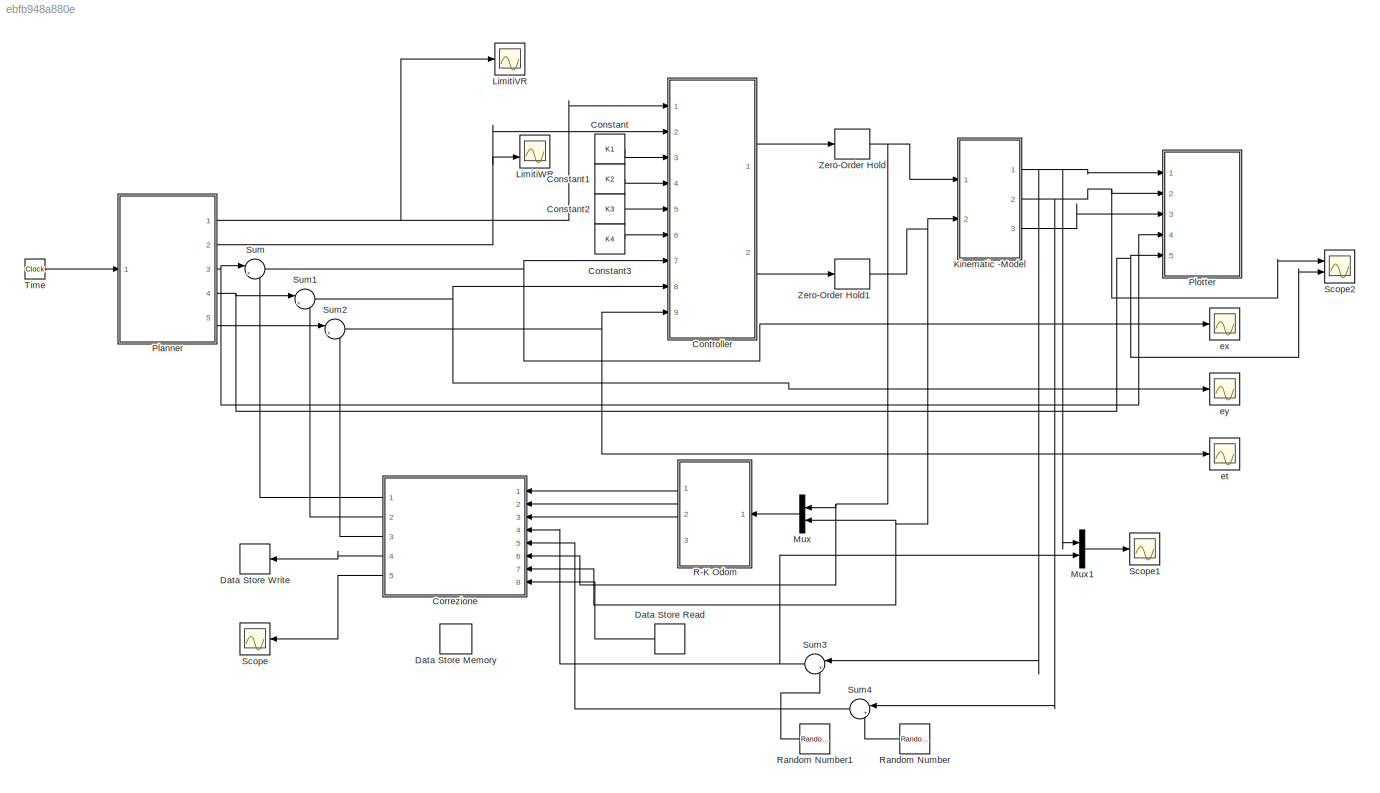
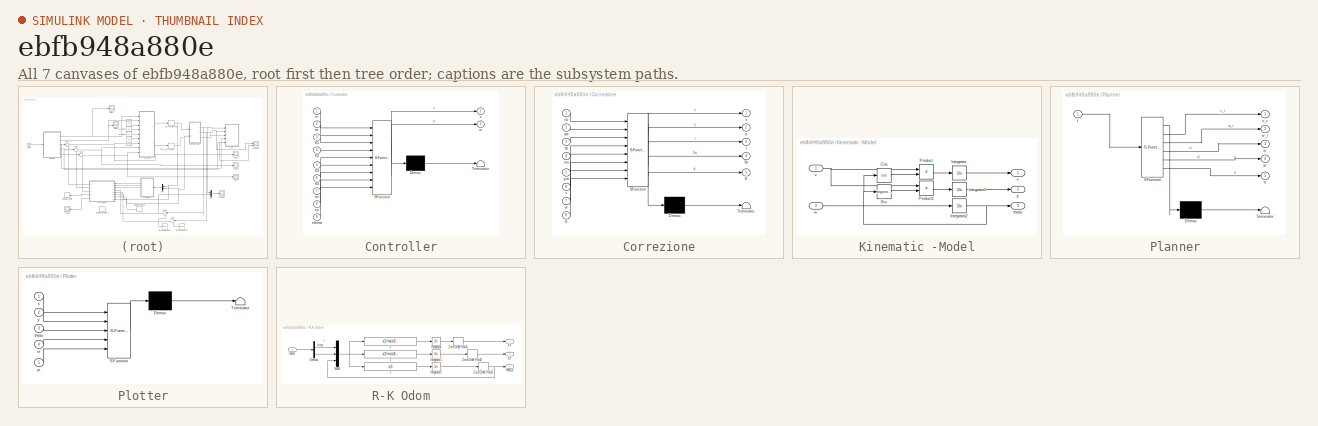
[diagram: thumbnail index - all 7 canvases of the model, root first then tree order]
MODEL slx_ebfb948a880e
KIND model
CONFIG AbsTol = auto
CONFIG EnableMultiTasking = off
CONFIG FixedStep = T_s
CONFIG MaxStep = auto
CONFIG MinStep = auto
CONFIG RelTol = 1e-3
CONFIG SampleTimeConstraint = Unconstrained
CONFIG SolverName = FixedStepAuto
CONFIG StartTime = 0.0
CONFIG StopTime = 250
BLOCK [Constant] Constant
  Value = K1
BLOCK [Constant] Constant1
  Value = K2
BLOCK [Constant] Constant2
  Value = K3
BLOCK [Constant] Constant3
  Value = K4
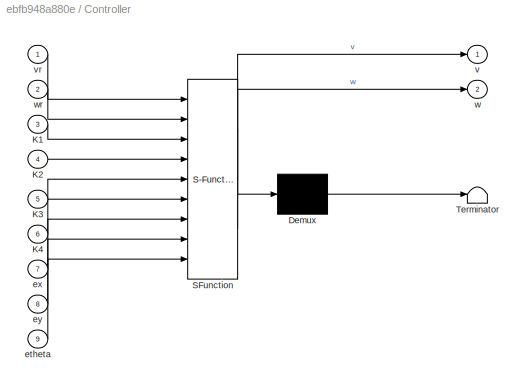
BLOCK [SubSystem] Controller
  ErrorFcn = Stateflow.Translate.translate
  PermitHierarchicalResolution = ExplicitOnly
  Ports = [9, 2]
  RequestExecContextInheritance = off
  SFBlockType = MATLAB Function
  TreatAsAtomicUnit = on
BLOCK [Demux] Controller/ Demux 
  Outputs = 1
  Ports = [1, 1]
BLOCK [S-Function] Controller/ SFunction 
  EnableBusSupport = on
  FunctionName = sf_sfun
  PortCounts = [9 3]
  Ports = [9, 3]
  SFcnIsStateOwnerBlock = off
  SFunctionDeploymentMode = off
  Tag = Stateflow S-Function 4
BLOCK [Terminator] Controller/ Terminator 
BLOCK [Inport] Controller/K1
  Port = 3
BLOCK [Inport] Controller/K2
  Port = 4
BLOCK [Inport] Controller/K3
  Port = 5
BLOCK [Inport] Controller/K4
  Port = 6
BLOCK [Inport] Controller/etheta
  Port = 9
BLOCK [Inport] Controller/ex
  Port = 7
BLOCK [Inport] Controller/ey
  Port = 8
BLOCK [Outport] Controller/v
BLOCK [Inport] Controller/vr
BLOCK [Outport] Controller/w
  Port = 2
BLOCK [Inport] Controller/wr
  Port = 2
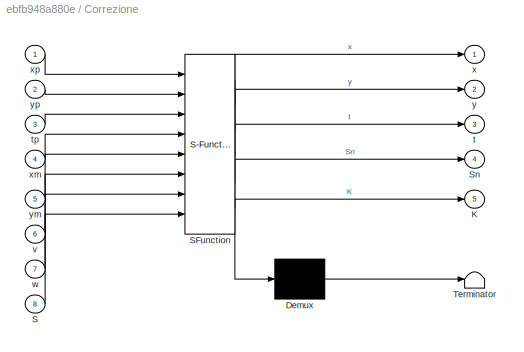
BLOCK [SubSystem] Correzione
  ErrorFcn = Stateflow.Translate.translate
  PermitHierarchicalResolution = ExplicitOnly
  Ports = [8, 5]
  RequestExecContextInheritance = off
  SFBlockType = MATLAB Function
  TreatAsAtomicUnit = on
BLOCK [Demux] Correzione/ Demux 
  Outputs = 1
  Ports = [1, 1]
BLOCK [S-Function] Correzione/ SFunction 
  EnableBusSupport = on
  FunctionName = sf_sfun
  PortCounts = [8 6]
  Ports = [8, 6]
  SFcnIsStateOwnerBlock = off
  SFunctionDeploymentMode = off
  Tag = Stateflow S-Function 3
BLOCK [Terminator] Correzione/ Terminator 
BLOCK [Outport] Correzione/K
  Port = 5
BLOCK [Inport] Correzione/S
  Port = 8
BLOCK [Outport] Correzione/Sn
  Port = 4
BLOCK [Outport] Correzione/t
  Port = 3
BLOCK [Inport] Correzione/tp
  Port = 3
BLOCK [Inport] Correzione/v
  Port = 6
BLOCK [Inport] Correzione/w
  Port = 7
BLOCK [Outport] Correzione/x
BLOCK [Inport] Correzione/xm
  Port = 4
BLOCK [Inport] Correzione/xp
BLOCK [Outport] Correzione/y
  Port = 2
BLOCK [Inport] Correzione/ym
  Port = 5
BLOCK [Inport] Correzione/yp
  Port = 2
BLOCK [DataStoreMemory] Data Store Memory
  DataStoreName = S
  InitialValue = eye(3)
  ReadBeforeWriteMsg = warning
  ShowAdditionalParam = off
  WriteAfterReadMsg = warning
  WriteAfterWriteMsg = warning
BLOCK [DataStoreRead] Data Store Read
  DataStoreName = S
  IndexOptions = Index vector (dialog)
  Indices = 1
  OutputSizes = 1
  Ports = [0, 1]
BLOCK [DataStoreWrite] Data Store Write
  DataStoreName = S
  IndexOptions = Index vector (dialog)
  Indices = 1
  OutputSizes = 1
  Ports = [1]
BLOCK [SubSystem] Kinematic -Model
  Ports = [2, 3]
  RequestExecContextInheritance = off
BLOCK [Trigonometry] Kinematic -Model/Cos
  Operator = cos
  Ports = [1, 1]
BLOCK [Integrator] Kinematic -Model/Integrator
  InitialCondition = x0(1)
  Ports = [1, 1]
BLOCK [Integrator] Kinematic -Model/Integrator1
  InitialCondition = x0(2)
  Ports = [1, 1]
BLOCK [Integrator] Kinematic -Model/Integrator2
  InitialCondition = x0(3)
  Ports = [1, 1]
BLOCK [Product] Kinematic -Model/Product
  Ports = [2, 1]
BLOCK [Product] Kinematic -Model/Product1
  Ports = [2, 1]
BLOCK [Trigonometry] Kinematic -Model/Sin
  Ports = [1, 1]
BLOCK [Outport] Kinematic -Model/theta
  Port = 3
BLOCK [Inport] Kinematic -Model/v
BLOCK [Inport] Kinematic -Model/w
  Port = 2
BLOCK [Outport] Kinematic -Model/x
BLOCK [Outport] Kinematic -Model/y
  Port = 2
BLOCK [Scope] LimitiVR
  Floating = off
  NumInputPorts = 1
  Ports = [1]
  ScopeSpecificationString = Simulink.scopes.TimeScopeBlockCfg('CurrentConfiguration', extmgr.ConfigurationSet(extmgr.Configuration('Core','General UI',true),extmgr.Configuration('Core','Source UI',true),extmgr.Configuration('Sources','WiredSimulink',true),extmgr.Configuration('Visuals','Time Domain',true,'SerializedDisplays',{struct('MinYLimReal','1.21079','MaxYLimReal','1.30944','YLabelReal','','MinYLimMag','1.21079','MaxYL...<+1401ch>
BLOCK [Scope] LimitiWR
  Floating = off
  NumInputPorts = 2
  Ports = [2]
  ScopeSpecificationString = Simulink.scopes.TimeScopeBlockCfg('CurrentConfiguration', extmgr.ConfigurationSet(extmgr.Configuration('Core','General UI',true),extmgr.Configuration('Core','Source UI',true),extmgr.Configuration('Sources','WiredSimulink',true,'DataLoggingVariableName','ScopeData1'),extmgr.Configuration('Visuals','Time Domain',true,'SerializedDisplays',{struct('MinYLimReal','-3.34792','MaxYLimReal','2.30369','YLab...<+1401ch>
BLOCK [Mux] Mux
  DisplayOption = bar
  Inputs = 2
  Ports = [2, 1]
BLOCK [Mux] Mux1
  DisplayOption = bar
  Inputs = 2
  Ports = [2, 1]
BLOCK [SubSystem] Planner
  ErrorFcn = Stateflow.Translate.translate
  PermitHierarchicalResolution = ExplicitOnly
  Ports = [1, 5]
  RequestExecContextInheritance = off
  SFBlockType = MATLAB Function
  TreatAsAtomicUnit = on
BLOCK [Demux] Planner/ Demux 
  Outputs = 1
  Ports = [1, 1]
BLOCK [S-Function] Planner/ SFunction 
  EnableBusSupport = on
  FunctionName = sf_sfun
  PortCounts = [1 6]
  Ports = [1, 6]
  SFcnIsStateOwnerBlock = off
  SFunctionDeploymentMode = off
  Tag = Stateflow S-Function 1
BLOCK [Terminator] Planner/ Terminator 
BLOCK [Inport] Planner/t
BLOCK [Outport] Planner/tr
  Port = 5
BLOCK [Outport] Planner/v_r
BLOCK [Outport] Planner/w_r
  Port = 2
BLOCK [Outport] Planner/xr
  Port = 3
BLOCK [Outport] Planner/yr
  Port = 4
BLOCK [SubSystem] Plotter
  ErrorFcn = Stateflow.Translate.translate
  PermitHierarchicalResolution = ExplicitOnly
  Ports = [5]
  RequestExecContextInheritance = off
  SFBlockType = MATLAB Function
  TreatAsAtomicUnit = on
BLOCK [Demux] Plotter/ Demux 
  Outputs = 1
  Ports = [1, 1]
BLOCK [S-Function] Plotter/ SFunction 
  EnableBusSupport = on
  FunctionName = sf_sfun
  PortCounts = [5 1]
  Ports = [5, 1]
  SFcnIsStateOwnerBlock = off
  SFunctionDeploymentMode = off
  Tag = Stateflow S-Function 2
BLOCK [Terminator] Plotter/ Terminator 
BLOCK [Inport] Plotter/theta
  Port = 3
BLOCK [Inport] Plotter/x
BLOCK [Inport] Plotter/xr
  Port = 4
BLOCK [Inport] Plotter/y
  Port = 2
BLOCK [Inport] Plotter/yr
  Port = 5
BLOCK [SubSystem] R-K Odom
  Ports = [1, 3]
  RequestExecContextInheritance = off
BLOCK [Fcn] R-K Odom/ 1
  Expr = u(1)*cos(u(3)+u(2)*T_s/2)
BLOCK [Fcn] R-K Odom/ 2
  Expr = u(1)*sin(u(3)+u(2)*T_s/2)
BLOCK [Fcn] R-K Odom/ 3
  Expr = u(2)
BLOCK [Demux] R-K Odom/Demux1
  Outputs = 2
  Ports = [1, 2]
BLOCK [Integrator] R-K Odom/Integrator
  InitialCondition = x0(1)
  Ports = [1, 1]
BLOCK [Integrator] R-K Odom/Integrator1
  InitialCondition = x0(2)
  Ports = [1, 1]
BLOCK [Integrator] R-K Odom/Integrator2
  InitialCondition = x0(3)
  Ports = [1, 1]
BLOCK [Mux] R-K Odom/Mux3
  DisplayOption = bar
  Inputs = 3
  Ports = [3, 1]
BLOCK [ZeroOrderHold] R-K Odom/Zero-Order Hold1
  SampleTime = T_s
BLOCK [ZeroOrderHold] R-K Odom/Zero-Order Hold2
  SampleTime = T_s
BLOCK [ZeroOrderHold] R-K Odom/Zero-Order Hold3
  SampleTime = T_s
BLOCK [Inport] R-K Odom/inputs
BLOCK [Outport] R-K Odom/theta_k
  Port = 3
BLOCK [Outport] R-K Odom/x_k
BLOCK [Outport] R-K Odom/y_k
  Port = 2
BLOCK [RandomNumber] Random Number
  SampleTime = T_s
  Variance = 0.001
BLOCK [RandomNumber] Random Number1
  SampleTime = T_s
  Variance = 0.001
BLOCK [Scope] Scope
  Floating = off
  NumInputPorts = 1
  Ports = [1]
  ScopeSpecificationString = Simulink.scopes.TimeScopeBlockCfg('CurrentConfiguration', extmgr.ConfigurationSet(extmgr.Configuration('Core','General UI',true,'FigureColor',[1 1 1]),extmgr.Configuration('Core','Source UI',true),extmgr.Configuration('Sources','WiredSimulink',true,'DataLoggingVariableName','ScopeData1'),extmgr.Configuration('Visuals','Time Domain',true,'SerializedDisplays',{struct('MinYLimReal','-1.01658','MaxYLi...<+2241ch>
BLOCK [Scope] Scope1
  Floating = off
  NumInputPorts = 1
  Ports = [1]
  ScopeSpecificationString = Simulink.scopes.TimeScopeBlockCfg('CurrentConfiguration', extmgr.ConfigurationSet(extmgr.Configuration('Core','General UI',true),extmgr.Configuration('Core','Source UI',true),extmgr.Configuration('Sources','WiredSimulink',true,'DataLoggingVariableName','ScopeData2'),extmgr.Configuration('Visuals','Time Domain',true,'SerializedDisplays',{struct('MinYLimReal','159.92234','MaxYLimReal','185.69795','Y...<+1417ch>
BLOCK [Scope] Scope2
  Floating = off
  NumInputPorts = 2
  Ports = [2]
  ScopeSpecificationString = Simulink.scopes.TimeScopeBlockCfg('CurrentConfiguration', extmgr.ConfigurationSet(extmgr.Configuration('Core','General UI',true,'FigureColor',[1 1 1]),extmgr.Configuration('Core','Source UI',true),extmgr.Configuration('Sources','WiredSimulink',true,'DataLoggingVariableName','ScopeData1'),extmgr.Configuration('Visuals','Time Domain',true,'SerializedDisplays',{struct('MinYLimReal','-12.77868','MaxYL...<+1764ch>
BLOCK [Sum] Sum
  Inputs = |+-
  Ports = [2, 1]
BLOCK [Sum] Sum1
  Inputs = |+-
  Ports = [2, 1]
BLOCK [Sum] Sum2
  Inputs = |+-
  Ports = [2, 1]
BLOCK [Sum] Sum3
  Inputs = |++
  Ports = [2, 1]
BLOCK [Sum] Sum4
  Inputs = |++
  Ports = [2, 1]
BLOCK [Clock] Time
  DisplayTime = on
BLOCK [ZeroOrderHold] Zero-Order Hold
  SampleTime = T_s
BLOCK [ZeroOrderHold] Zero-Order Hold1
  SampleTime = T_s
BLOCK [Scope] et
  Floating = off
  NumInputPorts = 1
  Ports = [1]
  ScopeSpecificationString = Simulink.scopes.TimeScopeBlockCfg('CurrentConfiguration', extmgr.ConfigurationSet(extmgr.Configuration('Core','General UI',true,'FigureColor',[1 1 1]),extmgr.Configuration('Core','Source UI',true),extmgr.Configuration('Sources','WiredSimulink',true,'DataLoggingVariableName','ScopeData5'),extmgr.Configuration('Visuals','Time Domain',true,'SerializedDisplays',{struct('MinYLimReal','-0.53668','MaxYLi...<+1636ch>
BLOCK [Scope] ex
  Floating = off
  NumInputPorts = 1
  Ports = [1]
  ScopeSpecificationString = Simulink.scopes.TimeScopeBlockCfg('CurrentConfiguration', extmgr.ConfigurationSet(extmgr.Configuration('Core','General UI',true,'FigureColor',[1 1 1]),extmgr.Configuration('Core','Source UI',true),extmgr.Configuration('Sources','WiredSimulink',true,'DataLoggingVariableName','ScopeData3'),extmgr.Configuration('Visuals','Time Domain',true,'SerializedDisplays',{struct('MinYLimReal','-3.87775','MaxYLi...<+1615ch>
BLOCK [Scope] ey
  Floating = off
  NumInputPorts = 1
  Ports = [1]
  ScopeSpecificationString = Simulink.scopes.TimeScopeBlockCfg('CurrentConfiguration', extmgr.ConfigurationSet(extmgr.Configuration('Core','General UI',true,'FigureColor',[1 1 1]),extmgr.Configuration('Core','Source UI',true),extmgr.Configuration('Sources','WiredSimulink',true,'DataLoggingVariableName','ScopeData4'),extmgr.Configuration('Visuals','Time Domain',true,'SerializedDisplays',{struct('MinYLimReal','-8.72187','MaxYLi...<+1612ch>
ANNOTATION R-K Odom: omega
ANNOTATION R-K Odom: v
LINE Constant1:1 -> Controller:4
LINE Constant2:1 -> Controller:5
LINE Constant3:1 -> Controller:6
LINE Constant:1 -> Controller:3
LINE Controller:1 -> Zero-Order Hold:1
LINE Controller:2 -> Zero-Order Hold1:1
LINE Correzione:1 -> Sum:2
LINE Correzione:2 -> Sum1:2
LINE Correzione:3 -> Sum2:2
LINE Correzione:4 -> Data Store Write:1
LINE Correzione:5 -> Scope:1
LINE Data Store Read:1 -> Correzione:8
LINE Kinematic -Model/Cos:1 -> Kinematic -Model/Product:2
LINE Kinematic -Model/Integrator1:1 -> Kinematic -Model/y:1
NET Kinematic -Model/Integrator2:1 -> Kinematic -Model/Cos:1, Kinematic -Model/Sin:1, Kinematic -Model/theta:1
LINE Kinematic -Model/Integrator:1 -> Kinematic -Model/x:1
LINE Kinematic -Model/Product1:1 -> Kinematic -Model/Integrator1:1
LINE Kinematic -Model/Product:1 -> Kinematic -Model/Integrator:1
LINE Kinematic -Model/Sin:1 -> Kinematic -Model/Product1:2
NET Kinematic -Model/v:1 -> Kinematic -Model/Product1:1, Kinematic -Model/Product:1
LINE Kinematic -Model/w:1 -> Kinematic -Model/Integrator2:1
NET Kinematic -Model:1 -> Mux1:1, Plotter:1, Sum3:1
NET Kinematic -Model:2 -> Plotter:2, Scope2:1, Sum4:1
LINE Kinematic -Model:3 -> Plotter:3
LINE Mux1:1 -> Scope1:1
LINE Mux:1 -> R-K Odom:1
NET Planner:1 -> Controller:1, LimitiVR:1
NET Planner:2 -> Controller:2, LimitiWR:2
NET Planner:3 -> Plotter:4, Sum:1
NET Planner:4 -> Plotter:5, Scope2:2, Sum1:1
LINE Planner:5 -> Sum2:1
LINE R-K Odom/ 1:1 -> R-K Odom/Integrator:1
LINE R-K Odom/ 2:1 -> R-K Odom/Integrator1:1
LINE R-K Odom/ 3:1 -> R-K Odom/Integrator2:1
LINE R-K Odom/Demux1:1 -> R-K Odom/Mux3:1
LINE R-K Odom/Demux1:2 -> R-K Odom/Mux3:2
LINE R-K Odom/Integrator1:1 -> R-K Odom/Zero-Order Hold2:1
LINE R-K Odom/Integrator2:1 -> R-K Odom/Zero-Order Hold3:1
LINE R-K Odom/Integrator:1 -> R-K Odom/Zero-Order Hold1:1
NET R-K Odom/Mux3:1 -> R-K Odom/ 1:1, R-K Odom/ 2:1, R-K Odom/ 3:1
LINE R-K Odom/Zero-Order Hold1:1 -> R-K Odom/x_k:1
LINE R-K Odom/Zero-Order Hold2:1 -> R-K Odom/y_k:1
NET R-K Odom/Zero-Order Hold3:1 -> R-K Odom/Mux3:3, R-K Odom/theta_k:1
LINE R-K Odom/inputs:1 -> R-K Odom/Demux1:1
LINE R-K Odom:1 -> Correzione:1
LINE R-K Odom:2 -> Correzione:2
LINE R-K Odom:3 -> Correzione:3
LINE Random Number1:1 -> Sum3:2
LINE Random Number:1 -> Sum4:2
NET Sum1:1 -> Controller:8, ey:1
NET Sum2:1 -> Controller:9, et:1
NET Sum3:1 -> Correzione:4, Mux1:2
LINE Sum4:1 -> Correzione:5
NET Sum:1 -> Controller:7, ex:1
LINE Time:1 -> Planner:1
NET Zero-Order Hold1:1 -> Correzione:7, Kinematic -Model:2, Mux:2
NET Zero-Order Hold:1 -> Correzione:6, Kinematic -Model:1, Mux:1
note: NET lines group one-source signal fan-out (src -> all destinations, sorted); 1:1 wires keep LINE
CHART Planner states=1 transitions=1
  STATE_LABEL 'eML_blk_kernel()'
  STATE_LABEL 'SCRIPT:\nfunction [v_r,w_r,xr,yr,tr] = getTraj(t)\nA =5;\nw = 0.1;\n% if(t >= 60 && t <= 150)\n%     A = 0.93;\n% elseif(t>150 && t <= 210)\n%     A = 0.80;\n% elseif(t > 210)\n%     A = 0.85;\n% end\n% definizione ingressi sfruttando la piattezza differenziale\nxr    =   t;\nyr    =   A*sin(w*t)+A*sin(2*w*t);\n% derivata prima\nx_d   =   1;\ny_d   =   A*cos(w*t)*w+2*A*cos(2*w*t)*w;\ntr    = atan2(y_d,x_d);\n% deri...<+192ch>'
CHART Plotter states=1 transitions=1
  STATE_LABEL 'eML_blk_kernel()'
  STATE_LABEL 'SCRIPT:\nfunction plotDD(x,y,theta,xr,yr)\npersistent xp yp xrr yrr\nif(isempty(xp))\n    xp  = [];\n    yp  = [];\n    xrr = [];\n    yrr = [];\nend\n% Definizione Parametri Strutturali Robot\nW = 2;                    % Base triangolo\nH = 1.7;                  % Altezza triangolo\ncoder.extrinsic("patch");\n% Definizione Robot -> Struttura Geometrica : Triangolo\nvertici_triangolo  = [-W/2 W/2 -W/2; \n       ...<+811ch>'
CHART Correzione states=1 transitions=1
  STATE_LABEL 'eML_blk_kernel()'
  STATE_LABEL 'SCRIPT:\nfunction [x,y,t,Sn,K]= fcn(xp,yp,tp,xm,ym,v,w,S)\n% Sampling Time\nT_s = 0.1;\n% Definizione Innovazione\ne                = [xp;yp] - [xm;ym];\n% Calcolo Jacobiano \nGt                =       [1 , 0 , -v*T_s*sin(tp+(w*T_s/2));\n                          0 , 1 ,  v*T_s*cos(tp+(w*T_s/2));\n                          0 , 0 ,            1           ];\n% Covarianza Rumore Processo e Misura\nRt          ...<+598ch>'
CHART Controller states=1 transitions=1
  STATE_LABEL 'eML_blk_kernel()'
  STATE_LABEL 'SCRIPT:\nfunction [v,w] = control(vr,wr,K1,K2,K3,K4,ex,ey,etheta)\n% definizione limiti \nvMin =    1;\nvMax =    5;\nwMin =   -5;\nwMax =    5;\n% Controllo Gain Scheduling\np1   = ((vr-vMin)/(vMax-vMin))*((wr -wMin)/(wMax - wMin));\np2   = ((vr - vMin)/(vMax-vMin))*((wMax-wr)/(wMax - wMin));\np3   = ((vMax-vr)/(vMax-vMin))*((wMax-wr)/(wMax -wMin));\np4   = ((vMax-vr)/(vMax-vMin))*((wr -wMin)/(wMax -wMin));...<+257ch>'
CHART  states=0 transitions=0
CHART  states=0 transitions=0
CHART  states=0 transitions=0
CHART  states=0 transitions=0
